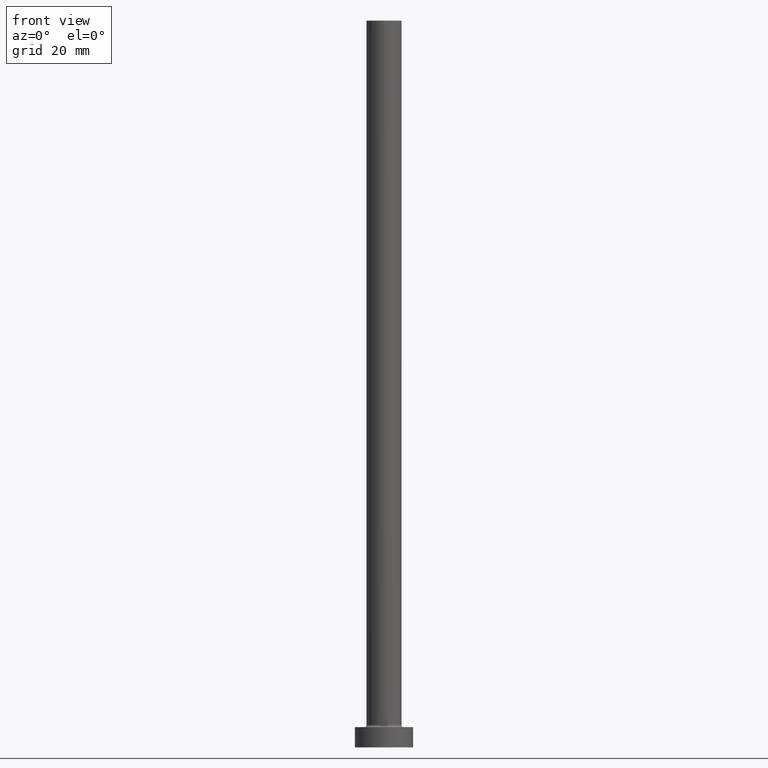
[diagram: clean part render]
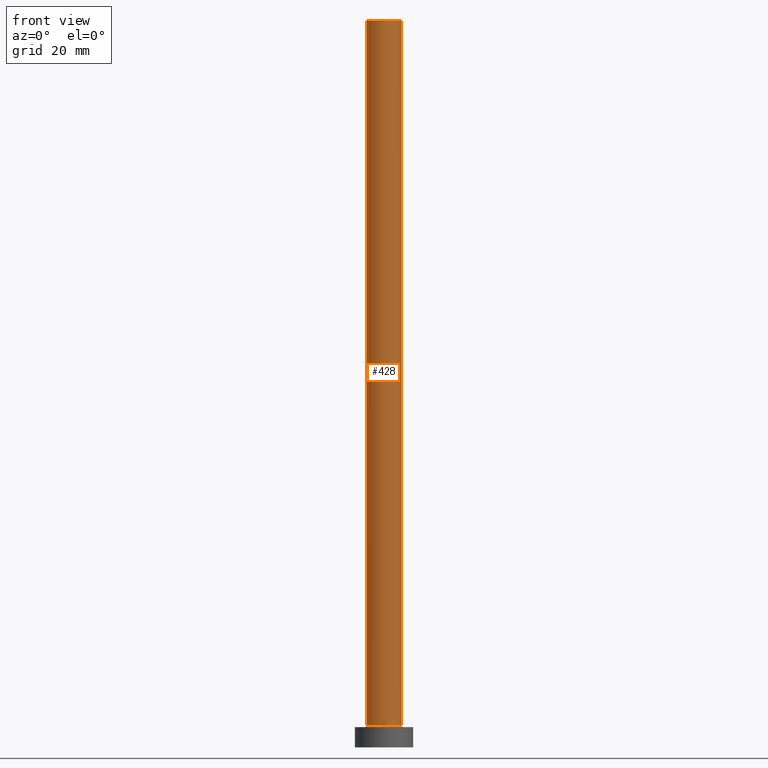
[diagram: same view with one face highlighted and labeled with its STEP entity id]
A machine part, front view. The second image highlights one B-rep face of the part: STEP entity #428.
In plain terms, the highlighted cylindrical surface (edge-blend (fillet) strip) has radius 6 mm, axis along (-0, -0, -1).
Its self-contained STEP definition (entity closure, byte-faithful):
#1 = FACE_OUTER_BOUND ( 'NONE', #306, .T. ) ;
#15 = CARTESIAN_POINT ( 'NONE',  ( 0.000000000000000000, 0.000000000000000000, 250.0000000000000000 ) ) ;
#30 = CARTESIAN_POINT ( 'NONE',  ( -6.000000000000000888, 0.000000000000000000, 250.0000000000000000 ) ) ;
#33 = DIRECTION ( 'NONE',  ( 1.000000000000000000, 0.000000000000000000, 0.000000000000000000 ) ) ;
#46 = AXIS2_PLACEMENT_3D ( 'NONE', #329, #141, #33 ) ;
#52 = VERTEX_POINT ( 'NONE', #96 ) ;
#62 = ORIENTED_EDGE ( 'NONE', *, *, #87, .F. ) ;
#87 = EDGE_CURVE ( 'NONE', #410, #342, #311, .T. ) ;
#95 = VECTOR ( 'NONE', #111, 1000.000000000000000 ) ;
#96 = CARTESIAN_POINT ( 'NONE',  ( -6.000000000000000888, 0.000000000000000000, 7.700000000000012612 ) ) ;
#111 = DIRECTION ( 'NONE',  ( -0.000000000000000000, -0.000000000000000000, -1.000000000000000000 ) ) ;
#141 = DIRECTION ( 'NONE',  ( 0.000000000000000000, 0.000000000000000000, 1.000000000000000000 ) ) ;
#148 = DIRECTION ( 'NONE',  ( 0.000000000000000000, 0.000000000000000000, 1.000000000000000000 ) ) ;
#209 = DIRECTION ( 'NONE',  ( -0.000000000000000000, -0.000000000000000000, -1.000000000000000000 ) ) ;
#213 = VECTOR ( 'NONE', #209, 1000.000000000000000 ) ;
#223 = AXIS2_PLACEMENT_3D ( 'NONE', #15, #301, #224 ) ;
#224 = DIRECTION ( 'NONE',  ( -1.000000000000000000, 0.000000000000000000, 0.000000000000000000 ) ) ;
#228 = ORIENTED_EDGE ( 'NONE', *, *, #338, .F. ) ;
#243 = AXIS2_PLACEMENT_3D ( 'NONE', #283, #148, #316 ) ;
#258 = CARTESIAN_POINT ( 'NONE',  ( 6.000000000000000888, 7.347880794884120722E-16, 250.0000000000000000 ) ) ;
#264 = CARTESIAN_POINT ( 'NONE',  ( -6.000000000000000888, 0.000000000000000000, 250.0000000000000000 ) ) ;
#267 = EDGE_CURVE ( 'NONE', #52, #342, #308, .T. ) ;
#283 = CARTESIAN_POINT ( 'NONE',  ( 0.000000000000000000, 0.000000000000000000, 7.700000000000012612 ) ) ;
#287 = CARTESIAN_POINT ( 'NONE',  ( 6.000000000000000888, 7.347880794884120722E-16, 250.0000000000000000 ) ) ;
#301 = DIRECTION ( 'NONE',  ( -0.000000000000000000, -0.000000000000000000, -1.000000000000000000 ) ) ;
#306 = EDGE_LOOP ( 'NONE', ( #62, #228, #344, #403 ) ) ;
#308 = CIRCLE ( 'NONE', #243, 6.000000000000000888 ) ;
#311 = LINE ( 'NONE', #287, #213 ) ;
#316 = DIRECTION ( 'NONE',  ( 1.000000000000000000, 0.000000000000000000, 0.000000000000000000 ) ) ;
#328 = CYLINDRICAL_SURFACE ( 'NONE', #223, 6.000000000000000888 ) ;
#329 = CARTESIAN_POINT ( 'NONE',  ( 0.000000000000000000, 0.000000000000000000, 250.0000000000000000 ) ) ;
#333 = CIRCLE ( 'NONE', #46, 6.000000000000000888 ) ;
#338 = EDGE_CURVE ( 'NONE', #447, #410, #333, .T. ) ;
#342 = VERTEX_POINT ( 'NONE', #369 ) ;
#344 = ORIENTED_EDGE ( 'NONE', *, *, #417, .T. ) ;
#354 = LINE ( 'NONE', #30, #95 ) ;
#369 = CARTESIAN_POINT ( 'NONE',  ( 6.000000000000000888, 7.347880794884120722E-16, 7.700000000000012612 ) ) ;
#403 = ORIENTED_EDGE ( 'NONE', *, *, #267, .T. ) ;
#410 = VERTEX_POINT ( 'NONE', #258 ) ;
#417 = EDGE_CURVE ( 'NONE', #447, #52, #354, .T. ) ;
#428 = ADVANCED_FACE ( 'NONE', ( #1 ), #328, .T. ) ;
#447 = VERTEX_POINT ( 'NONE', #264 ) ;